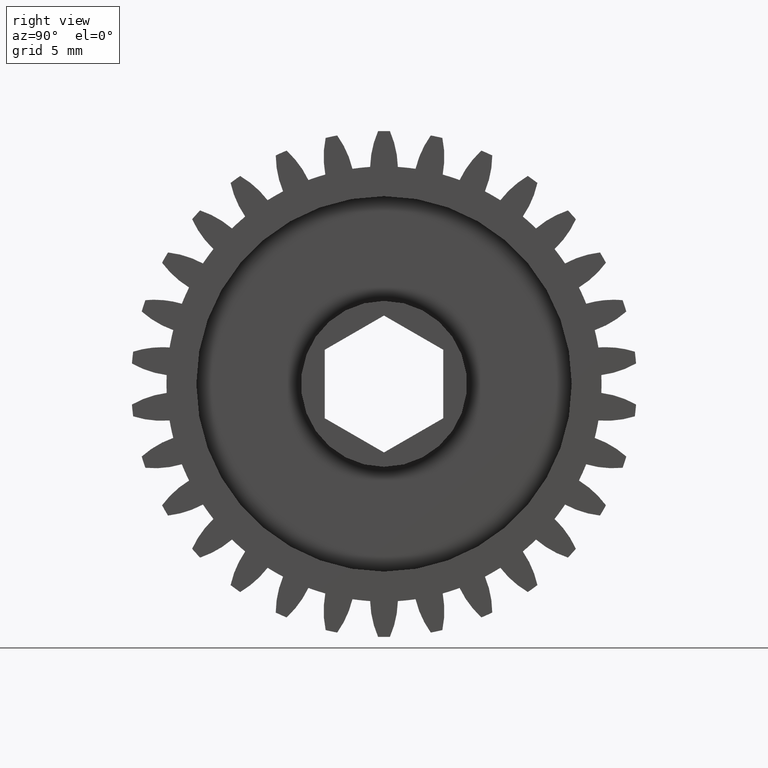
[diagram: clean part render]
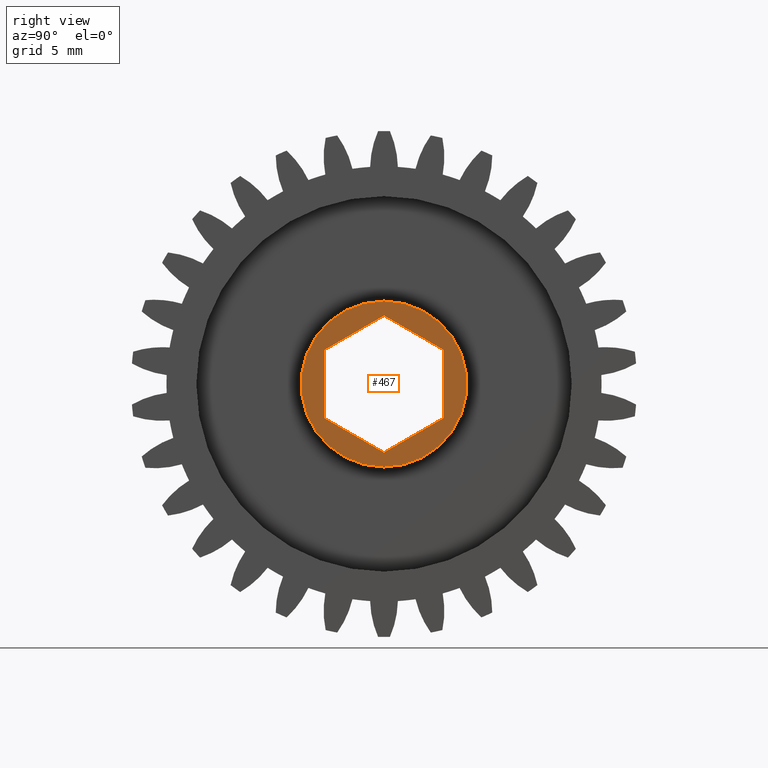
[diagram: same view with one face highlighted and labeled with its STEP entity id]
A machine part, right view. The second image highlights one B-rep face of the part: STEP entity #467.
In plain terms, the highlighted planar face has unit normal (1, 0, 0).
Its self-contained STEP definition (entity closure, byte-faithful):
#29 = VECTOR ( 'NONE', #3936, 39.37007874015749600 ) ;
#73 = DIRECTION ( 'NONE',  ( 1.000000000000000000, 0.0000000000000000000, 0.0000000000000000000 ) ) ;
#93 = EDGE_CURVE ( 'NONE', #3823, #1435, #1775, .T. ) ;
#94 = CARTESIAN_POINT ( 'NONE',  ( 0.4375000000000000600, 0.0000000000000000000, 0.0000000000000000000 ) ) ;
#96 = VECTOR ( 'NONE', #466, 39.37007874015748100 ) ;
#97 = LINE ( 'NONE', #179, #29 ) ;
#147 = VECTOR ( 'NONE', #682, 39.37007874015748100 ) ;
#153 = LINE ( 'NONE', #751, #2407 ) ;
#158 = LINE ( 'NONE', #4393, #2274 ) ;
#179 = CARTESIAN_POINT ( 'NONE',  ( 0.4375000000000000600, 3.632610216871045100E-017, -0.2165063509461097000 ) ) ;
#212 = LINE ( 'NONE', #1259, #2350 ) ;
#265 = LINE ( 'NONE', #1219, #147 ) ;
#315 = AXIS2_PLACEMENT_3D ( 'NONE', #4435, #4397, #4376 ) ;
#412 = CARTESIAN_POINT ( 'NONE',  ( 0.4375000000000000600, 0.0000000000000000000, 0.2625000000000000100 ) ) ;
#419 = VERTEX_POINT ( 'NONE', #2483 ) ;
#466 = DIRECTION ( 'NONE',  ( 0.0000000000000000000, 0.0000000000000000000, 1.000000000000000000 ) ) ;
#467 = ADVANCED_FACE ( 'NONE', ( #913, #897 ), #2875, .T. ) ;
#500 = CARTESIAN_POINT ( 'NONE',  ( 0.4375000000000000600, 0.1875000000000000300, -0.1082531754730548200 ) ) ;
#605 = AXIS2_PLACEMENT_3D ( 'NONE', #934, #2252, #2334 ) ;
#675 = DIRECTION ( 'NONE',  ( 0.0000000000000000000, -0.8660254037844386000, -0.5000000000000001100 ) ) ;
#682 = DIRECTION ( 'NONE',  ( 0.0000000000000000000, 0.0000000000000000000, -1.000000000000000000 ) ) ;
#751 = CARTESIAN_POINT ( 'NONE',  ( 0.4375000000000000600, 7.176444498392861800E-017, 0.2165063509461096800 ) ) ;
#897 = FACE_OUTER_BOUND ( 'NONE', #4026, .T. ) ;
#913 = FACE_BOUND ( 'NONE', #4639, .T. ) ;
#934 = CARTESIAN_POINT ( 'NONE',  ( 0.4375000000000000600, 0.0000000000000000000, 0.0000000000000000000 ) ) ;
#1093 = DIRECTION ( 'NONE',  ( 0.0000000000000000000, -0.8660254037844386000, 0.5000000000000001100 ) ) ;
#1219 = CARTESIAN_POINT ( 'NONE',  ( 0.4375000000000000600, -0.1874999999999999700, 0.1082531754730547800 ) ) ;
#1259 = CARTESIAN_POINT ( 'NONE',  ( 0.4375000000000000600, -0.1874999999999999700, -0.1082531754730548500 ) ) ;
#1345 = DIRECTION ( 'NONE',  ( 0.0000000000000000000, 0.8660254037844386000, -0.5000000000000000000 ) ) ;
#1435 = VERTEX_POINT ( 'NONE', #412 ) ;
#1471 = CARTESIAN_POINT ( 'NONE',  ( 0.4375000000000000600, 3.214697847761801800E-017, -0.2625000000000000100 ) ) ;
#1705 = VERTEX_POINT ( 'NONE', #2098 ) ;
#1725 = CARTESIAN_POINT ( 'NONE',  ( 0.4375000000000000600, -0.1874999999999999700, -0.1082531754730548500 ) ) ;
#1732 = EDGE_CURVE ( 'NONE', #3177, #1705, #212, .T. ) ;
#1740 = EDGE_CURVE ( 'NONE', #4264, #3177, #265, .T. ) ;
#1762 = EDGE_CURVE ( 'NONE', #419, #4264, #153, .T. ) ;
#1769 = EDGE_CURVE ( 'NONE', #4105, #419, #158, .T. ) ;
#1773 = EDGE_CURVE ( 'NONE', #4404, #4105, #2232, .T. ) ;
#1775 = CIRCLE ( 'NONE', #605, 0.2625000000000000100 ) ;
#1799 = EDGE_CURVE ( 'NONE', #1705, #4404, #97, .T. ) ;
#1806 = EDGE_CURVE ( 'NONE', #1435, #3823, #2341, .T. ) ;
#2098 = CARTESIAN_POINT ( 'NONE',  ( 0.4375000000000000600, 3.414809992080329000E-017, -0.2165063509461097000 ) ) ;
#2232 = LINE ( 'NONE', #500, #96 ) ;
#2252 = DIRECTION ( 'NONE',  ( 1.000000000000000000, 0.0000000000000000000, 0.0000000000000000000 ) ) ;
#2274 = VECTOR ( 'NONE', #1093, 39.37007874015748100 ) ;
#2334 = DIRECTION ( 'NONE',  ( 0.0000000000000000000, 0.0000000000000000000, -1.000000000000000000 ) ) ;
#2341 = CIRCLE ( 'NONE', #4289, 0.2625000000000000100 ) ;
#2350 = VECTOR ( 'NONE', #1345, 39.37007874015748900 ) ;
#2407 = VECTOR ( 'NONE', #675, 39.37007874015748100 ) ;
#2483 = CARTESIAN_POINT ( 'NONE',  ( 0.4375000000000000600, 7.176444498392861800E-017, 0.2165063509461096800 ) ) ;
#2875 = PLANE ( 'NONE',  #315 ) ;
#2916 = DIRECTION ( 'NONE',  ( 0.0000000000000000000, 0.0000000000000000000, -1.000000000000000000 ) ) ;
#3177 = VERTEX_POINT ( 'NONE', #1725 ) ;
#3823 = VERTEX_POINT ( 'NONE', #1471 ) ;
#3936 = DIRECTION ( 'NONE',  ( 0.0000000000000000000, 0.8660254037844384900, 0.5000000000000002200 ) ) ;
#4026 = EDGE_LOOP ( 'NONE', ( #4898, #4909 ) ) ;
#4105 = VERTEX_POINT ( 'NONE', #4756 ) ;
#4169 = CARTESIAN_POINT ( 'NONE',  ( 0.4375000000000000600, 0.1875000000000000300, -0.1082531754730548200 ) ) ;
#4264 = VERTEX_POINT ( 'NONE', #4426 ) ;
#4289 = AXIS2_PLACEMENT_3D ( 'NONE', #94, #73, #2916 ) ;
#4376 = DIRECTION ( 'NONE',  ( 0.0000000000000000000, 0.0000000000000000000, -1.000000000000000000 ) ) ;
#4383 = ORIENTED_EDGE ( 'NONE', *, *, #1732, .F. ) ;
#4393 = CARTESIAN_POINT ( 'NONE',  ( 0.4375000000000000600, 0.1875000000000000300, 0.1082531754730548500 ) ) ;
#4397 = DIRECTION ( 'NONE',  ( 1.000000000000000000, 0.0000000000000000000, 0.0000000000000000000 ) ) ;
#4404 = VERTEX_POINT ( 'NONE', #4169 ) ;
#4426 = CARTESIAN_POINT ( 'NONE',  ( 0.4375000000000000600, -0.1874999999999999700, 0.1082531754730547800 ) ) ;
#4435 = CARTESIAN_POINT ( 'NONE',  ( 0.4375000000000000600, 0.0000000000000000000, 0.0000000000000000000 ) ) ;
#4511 = ORIENTED_EDGE ( 'NONE', *, *, #1740, .F. ) ;
#4626 = ORIENTED_EDGE ( 'NONE', *, *, #1762, .F. ) ;
#4639 = EDGE_LOOP ( 'NONE', ( #4383, #4511, #4626, #4675, #4680, #4761 ) ) ;
#4675 = ORIENTED_EDGE ( 'NONE', *, *, #1769, .F. ) ;
#4680 = ORIENTED_EDGE ( 'NONE', *, *, #1773, .F. ) ;
#4756 = CARTESIAN_POINT ( 'NONE',  ( 0.4375000000000000600, 0.1875000000000000300, 0.1082531754730548500 ) ) ;
#4761 = ORIENTED_EDGE ( 'NONE', *, *, #1799, .F. ) ;
#4898 = ORIENTED_EDGE ( 'NONE', *, *, #1806, .T. ) ;
#4909 = ORIENTED_EDGE ( 'NONE', *, *, #93, .T. ) ;